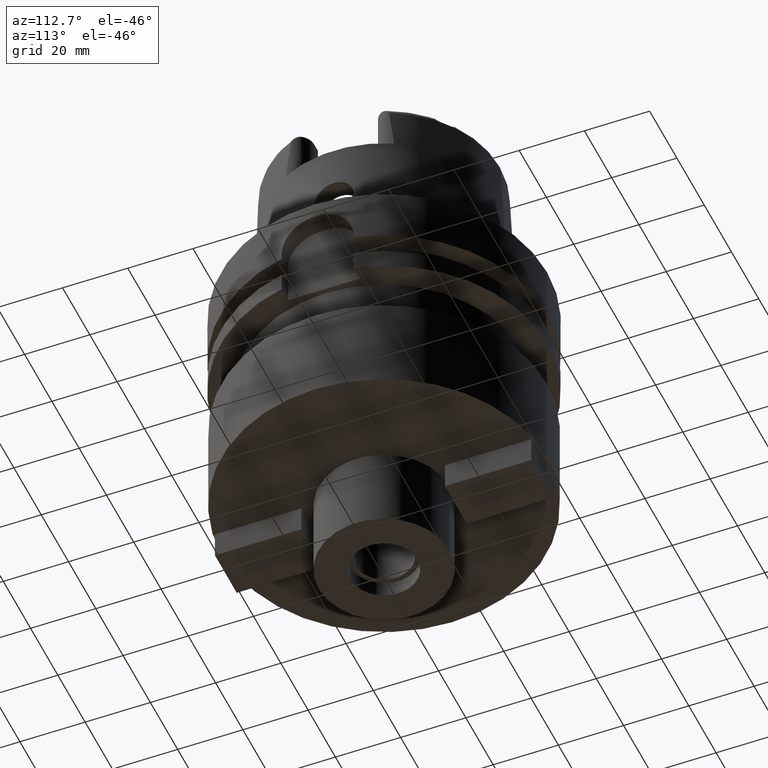
[diagram: clean part render]
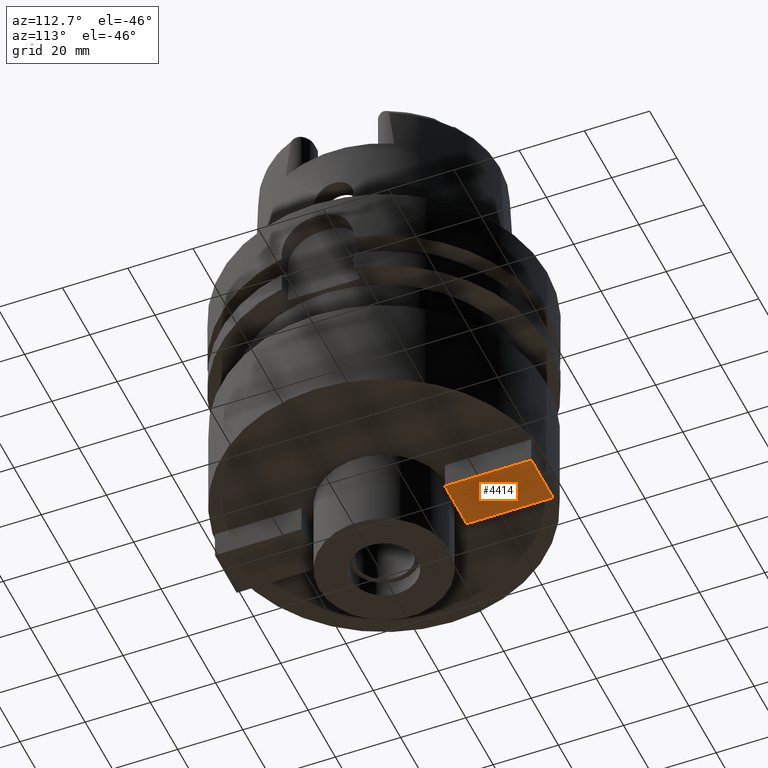
[diagram: same view with one face highlighted and labeled with its STEP entity id]
A machine part, auxiliary view. The second image highlights one B-rep face of the part: STEP entity #4414.
In plain terms, the highlighted planar face has unit normal (0, 0, -1).
Its self-contained STEP definition (entity closure, byte-faithful):
#2256=DIRECTION('',(-1.E0,0.E0,0.E0));
#2257=VECTOR('',#2256,1.6E1);
#2258=CARTESIAN_POINT('',(8.E0,2.2E1,-8.35E1));
#2259=LINE('',#2258,#2257);
#2284=DIRECTION('',(0.E0,-1.E0,0.E0));
#2285=VECTOR('',#2284,2.65E1);
#2286=CARTESIAN_POINT('',(8.E0,4.85E1,-8.35E1));
#2287=LINE('',#2286,#2285);
#2312=DIRECTION('',(0.E0,-1.E0,0.E0));
#2313=VECTOR('',#2312,2.65E1);
#2314=CARTESIAN_POINT('',(-8.E0,4.85E1,-8.35E1));
#2315=LINE('',#2314,#2313);
#2319=DIRECTION('',(-1.E0,0.E0,0.E0));
#2320=VECTOR('',#2319,1.6E1);
#2321=CARTESIAN_POINT('',(8.E0,4.85E1,-8.35E1));
#2322=LINE('',#2321,#2320);
#2665=CARTESIAN_POINT('',(-8.E0,2.2E1,-8.35E1));
#2666=VERTEX_POINT('',#2665);
#2667=CARTESIAN_POINT('',(-8.E0,4.85E1,-8.35E1));
#2668=VERTEX_POINT('',#2667);
#2669=CARTESIAN_POINT('',(8.E0,2.2E1,-8.35E1));
#2670=VERTEX_POINT('',#2669);
#2671=CARTESIAN_POINT('',(8.E0,4.85E1,-8.35E1));
#2672=VERTEX_POINT('',#2671);
#4403=CARTESIAN_POINT('',(-8.E0,2.2E1,-8.35E1));
#4404=DIRECTION('',(0.E0,0.E0,-1.E0));
#4405=DIRECTION('',(0.E0,1.E0,0.E0));
#4406=AXIS2_PLACEMENT_3D('',#4403,#4404,#4405);
#4407=PLANE('',#4406);
#4408=ORIENTED_EDGE('',*,*,#4355,.T.);
#4409=ORIENTED_EDGE('',*,*,#4370,.F.);
#4410=ORIENTED_EDGE('',*,*,#4384,.F.);
#4411=ORIENTED_EDGE('',*,*,#4397,.T.);
#4412=EDGE_LOOP('',(#4408,#4409,#4410,#4411));
#4413=FACE_OUTER_BOUND('',#4412,.F.);
#4355=EDGE_CURVE('',#2668,#2666,#2315,.T.);
#4370=EDGE_CURVE('',#2670,#2666,#2259,.T.);
#4384=EDGE_CURVE('',#2672,#2670,#2287,.T.);
#4397=EDGE_CURVE('',#2672,#2668,#2322,.T.);
#4414=ADVANCED_FACE('',(#4413),#4407,.T.);